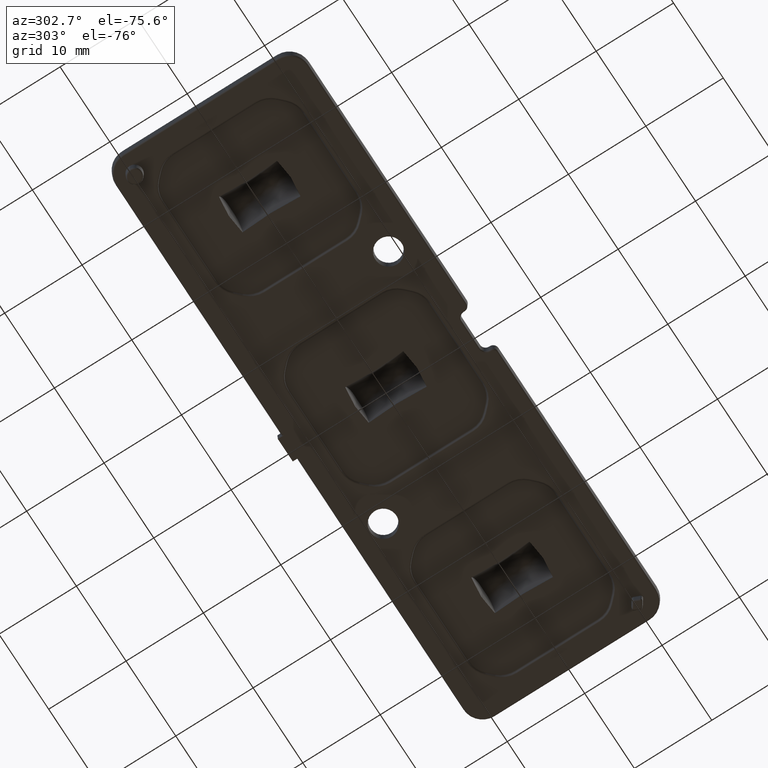
[diagram: clean part render]
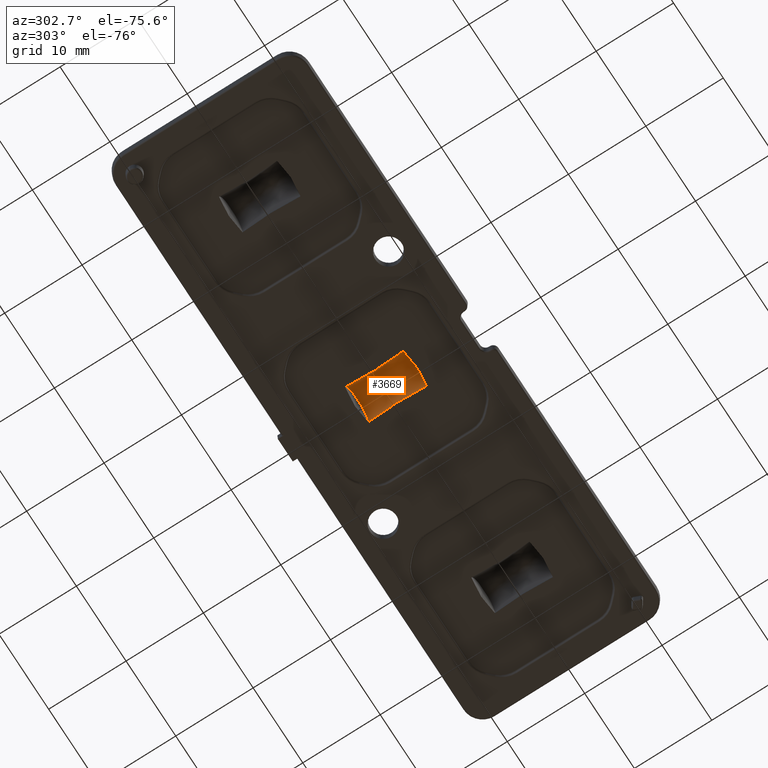
[diagram: same view with one face highlighted and labeled with its STEP entity id]
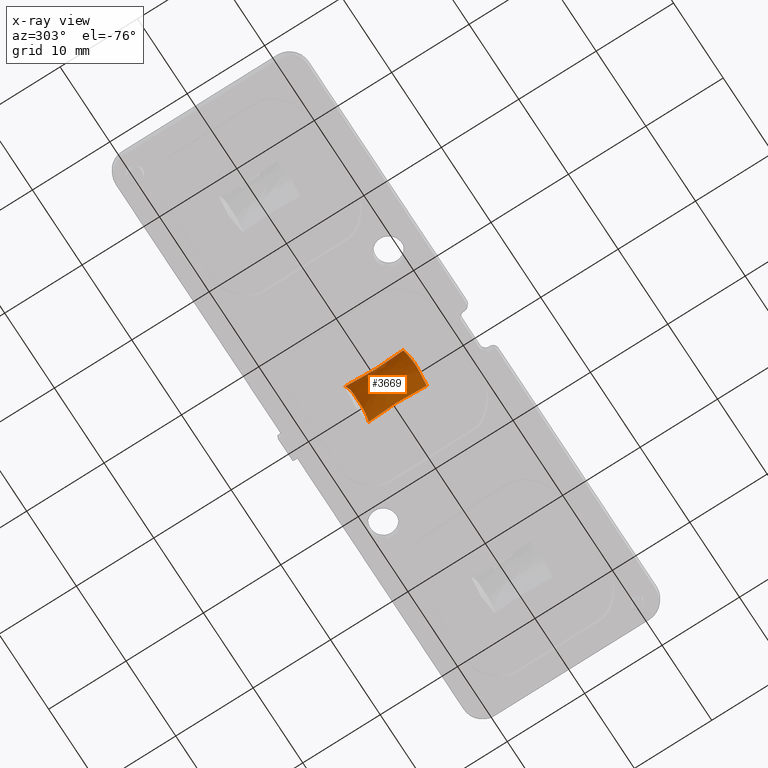
[diagram: x-ray of the same camera — body ghosted, the highlighted face saturated]
A machine part, auxiliary view. The second image highlights one B-rep face of the part: STEP entity #3669.
The next image is the same camera in x-ray: the body ghosted, the highlighted face saturated — about 0% of this face is hidden behind the body in this view.
In plain terms, the highlighted face is a freeform B-spline surface patch.
Its self-contained STEP definition (entity closure, byte-faithful):
#6 = CARTESIAN_POINT ( 'NONE',  ( -1.938322180833122100, -1.781647031671474800, 1.954993092119675900 ) ) ;
#43 = CARTESIAN_POINT ( 'NONE',  ( 2.070830659728351000E-008, -3.722142616845544300, 2.684695593960499100 ) ) ;
#60 = CARTESIAN_POINT ( 'NONE',  ( -2.199999999999993500, -0.2919439246713228000, 0.7000000000000000700 ) ) ;
#120 = CARTESIAN_POINT ( 'NONE',  ( 2.247177164073872000, 1.751081931142377800, 0.7000000000000000700 ) ) ;
#171 = CARTESIAN_POINT ( 'NONE',  ( 1.910400751399803100, 3.224598417031533600, 1.817853037974136700 ) ) ;
#230 = CARTESIAN_POINT ( 'NONE',  ( 1.106021607526031600, 3.633064071073342400, 2.748734378366568500 ) ) ;
#288 = CARTESIAN_POINT ( 'NONE',  ( -2.273489633366057500, 2.335922783022777800, 0.7000000000000001800 ) ) ;
#289 = CARTESIAN_POINT ( 'NONE',  ( -1.115164121187152400, 3.885060405516905100, 2.558542903362211800 ) ) ;
#343 = CARTESIAN_POINT ( 'NONE',  ( -2.254173030084107000, -1.873504598559234900, 0.7000000000000001800 ) ) ;
#344 = CARTESIAN_POINT ( 'NONE',  ( -1.963102040071360800, 4.049999990387860300, 1.547729142131533300 ) ) ;
#427 = CARTESIAN_POINT ( 'NONE',  ( -1.368020943705497100, 3.686195171846964300, 2.142673637579761300 ) ) ;
#816 = CARTESIAN_POINT ( 'NONE',  ( 0.2759687860684171300, 3.714579178955280400, 2.674360944650176800 ) ) ;
#955 = CARTESIAN_POINT ( 'NONE',  ( 0.5452000737742284100, -3.703301169045987200, 2.619409536375215900 ) ) ;
#1028 = CARTESIAN_POINT ( 'NONE',  ( 2.210189081648904300, -0.6182218380760263800, 0.7000000000000001800 ) ) ;
#1090 = CARTESIAN_POINT ( 'NONE',  ( 2.362073832273960900, 3.744129350259079100, 0.7000000000000000700 ) ) ;
#1133 = CARTESIAN_POINT ( 'NONE',  ( 1.121350742531300500, -3.999999966070490600, 2.450000026747670900 ) ) ;
#1195 = CARTESIAN_POINT ( 'NONE',  ( -1.115164120736870300, -3.885060401505610300, 2.558542900511462800 ) ) ;
#1259 = CARTESIAN_POINT ( 'NONE',  ( -1.932443769087164500, -3.641759306834954700, 1.697096321535083400 ) ) ;
#1318 = CARTESIAN_POINT ( 'NONE',  ( -2.321173462977704100, -3.208924242817424500, 0.7000000000000000700 ) ) ;
#1370 = CARTESIAN_POINT ( 'NONE',  ( 2.218255683754073000, -0.8757043699254470900, 0.7000000000000000700 ) ) ;
#1425 = CARTESIAN_POINT ( 'NONE',  ( 1.983972765628786700, 0.2979577111195352800, 1.925151326831767500 ) ) ;
#1482 = CARTESIAN_POINT ( 'NONE',  ( 1.209246416581734900, 1.812222114234161900, 3.512099556389242300 ) ) ;
#1535 = CARTESIAN_POINT ( 'NONE',  ( -1.095075230392116100, 3.240717626379617600, 2.991851515250781200 ) ) ;
#1594 = CARTESIAN_POINT ( 'NONE',  ( -1.932443770061454500, 3.641759311594911600, 1.697096325104369100 ) ) ;
#1653 = CARTESIAN_POINT ( 'NONE',  ( -2.239050598193400400, 1.511490247740725500, 0.7000000000000001800 ) ) ;
#1654 = CARTESIAN_POINT ( 'NONE',  ( -2.381440135969019200, 3.950555956627526100, 0.7000000000000000700 ) ) ;
#1716 = CARTESIAN_POINT ( 'NONE',  ( -2.299258491088910900, -2.809553236507722500, 0.7000000000000001800 ) ) ;
#1793 = CARTESIAN_POINT ( 'NONE',  ( -1.043187975939768000, 3.688157043570041300, 2.391203127542404200 ) ) ;
#1888 = CARTESIAN_POINT ( 'NONE',  ( -0.1374736375402809700, -3.722142617429577100, 2.684695589789028800 ) ) ;
#1969 = ORIENTED_EDGE ( 'NONE', *, *, #8386, .F. ) ;
#2200 = CARTESIAN_POINT ( 'NONE',  ( 0.6732593278642089500, 3.698205897707515200, 2.577037121886300900 ) ) ;
#2342 = CARTESIAN_POINT ( 'NONE',  ( 0.1383372661423200300, -3.722142613413574000, 2.684695600231164800 ) ) ;
#2406 = CARTESIAN_POINT ( 'NONE',  ( 2.200008142793929100, -0.2073773898996218700, 0.7000000000000001800 ) ) ;
#2518 = CARTESIAN_POINT ( 'NONE',  ( -1.963102040071357200, -4.049999978704883900, 1.547729149294735800 ) ) ;
#2575 = CARTESIAN_POINT ( 'NONE',  ( -2.381440134618179700, -3.950555944396136400, 0.7000000000000000700 ) ) ;
#2630 = CARTESIAN_POINT ( 'NONE',  ( 2.346304673140578300, -3.550179632978740500, 0.7000000000000000700 ) ) ;
#2688 = CARTESIAN_POINT ( 'NONE',  ( 1.907153816328010400, -2.655614232911511800, 1.913322046017623500 ) ) ;
#2746 = CARTESIAN_POINT ( 'NONE',  ( 1.304437247449351300, -0.9117226806700918800, 3.665846891199570300 ) ) ;
#2803 = CARTESIAN_POINT ( 'NONE',  ( -1.333333333333328800, 0.3039715536328377300, 3.700000000000003700 ) ) ;
#2859 = CARTESIAN_POINT ( 'NONE',  ( -1.938322178899505500, 1.781647030699128800, 1.954993068981703000 ) ) ;
#2916 = CARTESIAN_POINT ( 'NONE',  ( -2.321173463583022100, 3.208924251036931400, 0.7000000000000000700 ) ) ;
#2976 = CARTESIAN_POINT ( 'NONE',  ( 2.366797013659063700, 3.800636953830062400, 0.7000000000000000700 ) ) ;
#3028 = CARTESIAN_POINT ( 'NONE',  ( -2.210189065722852200, 0.6182213158610523300, 0.7000000000000001800 ) ) ;
#3029 = CARTESIAN_POINT ( 'NONE',  ( 1.958503429953850600, 4.006514554179638300, 1.566354808499855500 ) ) ;
#3084 = CARTESIAN_POINT ( 'NONE',  ( -2.362073882084748400, -3.744129345926764600, 0.7000000000000000700 ) ) ;
#3099 = CARTESIAN_POINT ( 'NONE',  ( -2.362073832273950300, 3.744129350259100000, 0.7000000000000000700 ) ) ;
#3159 = CARTESIAN_POINT ( 'NONE',  ( -0.6745689859930672500, 3.698155070706369500, 2.576601719508039100 ) ) ;
#3250 = CARTESIAN_POINT ( 'NONE',  ( -0.5391142143723179900, -3.703553731607839100, 2.621052583184759300 ) ) ;
#3560 = CARTESIAN_POINT ( 'NONE',  ( 1.040870236443111700, 3.688198644842052500, 2.392648752560528400 ) ) ;
#3669 = ADVANCED_FACE ( 'NONE', ( #8288 ), #6206, .F. ) ;
#3769 = CARTESIAN_POINT ( 'NONE',  ( 2.199991898595044000, 0.2063226400510336000, 0.7000000000000001800 ) ) ;
#3866 = CARTESIAN_POINT ( 'NONE',  ( 2.393102084259711500, -4.050280456258760400, 0.7000000000000000700 ) ) ;
#3918 = CARTESIAN_POINT ( 'NONE',  ( 1.940966714631172400, -3.781142893832707400, 1.651347274007560800 ) ) ;
#3976 = CARTESIAN_POINT ( 'NONE',  ( 1.103478186450835400, -3.544698120174178500, 2.805471974520908700 ) ) ;
#4030 = CARTESIAN_POINT ( 'NONE',  ( -1.118870437173111300, -2.686956695791823600, 3.249497848675132200 ) ) ;
#4080 = CARTESIAN_POINT ( 'NONE',  ( -1.976867714103498700, -0.8937119894271604600, 1.939022939924150800 ) ) ;
#4138 = CARTESIAN_POINT ( 'NONE',  ( -2.199999999999993500, 0.2919438686061561200, 0.7000000000000000700 ) ) ;
#4158 = VERTEX_POINT ( 'NONE', #43 ) ;
#4196 = CARTESIAN_POINT ( 'NONE',  ( 2.288065611270234900, 2.626042325919572200, 0.7000000000000000700 ) ) ;
#4246 = CARTESIAN_POINT ( 'NONE',  ( 1.927331060539945400, 3.547477503267400900, 1.725603194758489600 ) ) ;
#4301 = CARTESIAN_POINT ( 'NONE',  ( 1.110283080417485200, 3.761648852249296600, 2.657236287250665600 ) ) ;
#4357 = CARTESIAN_POINT ( 'NONE',  ( -2.200008132560080700, 0.2073767231299182000, 0.7000000000000001800 ) ) ;
#4358 = CARTESIAN_POINT ( 'NONE',  ( -1.119051437471853200, 3.962748656699312600, 2.487251345159574800 ) ) ;
#4483 = CARTESIAN_POINT ( 'NONE',  ( -0.2771553780488199600, 3.714528880874688800, 2.674207735394013700 ) ) ;
#4574 = CARTESIAN_POINT ( 'NONE',  ( -1.043621975324940300, -3.686927955874604200, 2.408285504020378600 ) ) ;
#4628 = ORIENTED_EDGE ( 'NONE', *, *, #9399, .T. ) ;
#4887 = CARTESIAN_POINT ( 'NONE',  ( 1.364730772817694100, 3.686181200215257600, 2.145577332001928900 ) ) ;
#4973 = CARTESIAN_POINT ( 'NONE',  ( 1.828756313547828900, -3.696898522795972800, 1.639489717998159300 ) ) ;
#5041 = CARTESIAN_POINT ( 'NONE',  ( 2.362073830041583600, -3.744129337504875200, 0.7000001174936764100 ) ) ;
#5103 = CARTESIAN_POINT ( 'NONE',  ( 2.210161549615244200, 0.6173373913373266800, 0.7000000000000001800 ) ) ;
#5211 = CARTESIAN_POINT ( 'NONE',  ( 1.119051437284499700, -3.962748639406017800, 2.487251353412204000 ) ) ;
#5269 = CARTESIAN_POINT ( 'NONE',  ( -1.110283079810658200, -3.761648862427272400, 2.657236276173933700 ) ) ;
#5323 = CARTESIAN_POINT ( 'NONE',  ( -1.927305155498604300, -3.547439134203362900, 1.725464962567764900 ) ) ;
#5374 = CARTESIAN_POINT ( 'NONE',  ( -2.288065612374909900, -2.626042337410582600, 0.7000000000000000700 ) ) ;
#5434 = CARTESIAN_POINT ( 'NONE',  ( 2.200000000000007300, -0.2919439246713215200, 0.7000000000000000700 ) ) ;
#5487 = CARTESIAN_POINT ( 'NONE',  ( -2.362073882084748400, -3.744129345926764600, 0.7000000000000000700 ) ) ;
#5489 = CARTESIAN_POINT ( 'NONE',  ( 1.976717509767869500, 0.8934906446303081400, 1.938220728491977700 ) ) ;
#5541 = CARTESIAN_POINT ( 'NONE',  ( 1.118269809881521100, 2.686969000671034300, 3.249490286208643200 ) ) ;
#5604 = CARTESIAN_POINT ( 'NONE',  ( -1.103452300446280200, 3.544698652811125500, 2.805471647945317200 ) ) ;
#5662 = CARTESIAN_POINT ( 'NONE',  ( -1.940966715844191900, 3.781142898709346500, 1.651347279546361100 ) ) ;
#5719 = CARTESIAN_POINT ( 'NONE',  ( -2.199991908778824900, -0.2063233063428913100, 0.7000000000000001800 ) ) ;
#5720 = CARTESIAN_POINT ( 'NONE',  ( -2.393102084823298900, 4.050280460321125100, 0.7000000000000000700 ) ) ;
#5847 = CARTESIAN_POINT ( 'NONE',  ( 6.938893903907228400E-015, 3.722142616424311400, 2.684695596969109300 ) ) ;
#5913 = EDGE_CURVE ( 'NONE', #6496, #14608, #13482, .T. ) ;
#5924 = CARTESIAN_POINT ( 'NONE',  ( 2.362073830041583600, -3.744129337504875200, 0.7000001174936764100 ) ) ;
#5936 = CARTESIAN_POINT ( 'NONE',  ( -1.654667837165335200, -3.689938748973161900, 1.861612693343567700 ) ) ;
#6028 = CARTESIAN_POINT ( 'NONE',  ( 2.362073832273960900, 3.744129350259079100, 0.7000000000000000700 ) ) ;
#6206 = B_SPLINE_SURFACE_WITH_KNOTS ( 'NONE', 3, 3, ( 
 ( #17300, #15945, #1133, #10580, #2518, #11932 ),
 ( #3866, #13291, #5211, #14644, #6565, #16010 ),
 ( #7920, #17358, #9291, #1195, #10629, #2575 ),
 ( #11990, #3918, #13348, #5269, #14706, #6623 ),
 ( #16066, #7981, #17418, #9351, #1259, #10684 ),
 ( #2630, #12051, #3976, #13405, #5323, #14768 ),
 ( #6680, #16119, #8039, #17481, #9407, #1318 ),
 ( #10747, #2688, #12108, #4030, #13455, #5374 ),
 ( #14822, #6736, #16174, #8096, #6, #9458 ),
 ( #1370, #10806, #2746, #12163, #4080, #13510 ),
 ( #5434, #14875, #6790, #16230, #8150, #60 ),
 ( #9519, #1425, #10856, #2803, #12214, #4138 ),
 ( #13566, #5489, #14932, #6842, #16286, #8208 ),
 ( #120, #9565, #1482, #10917, #2859, #12273 ),
 ( #4196, #13620, #5541, #14991, #6897, #16344 ),
 ( #8265, #171, #9624, #1535, #10969, #2916 ),
 ( #12326, #4246, #13680, #5604, #15049, #6956 ),
 ( #16403, #8322, #230, #9688, #1594, #11028 ),
 ( #2976, #12384, #4301, #13741, #5662, #15109 ),
 ( #7014, #16461, #8383, #289, #9745, #1654 ),
 ( #11089, #3029, #12438, #4358, #13796, #5720 ),
 ( #15161, #7072, #16519, #8449, #344, #9802 ) ),
 .UNSPECIFIED., .F., .F., .F.,
 ( 4, 1, 1, 1, 2, 1, 1, 1, 2, 1, 1, 1, 2, 1, 1, 1, 4 ),
 ( 4, 2, 4 ),
 ( 0.0000000000000000000, 0.01838052594720699900, 0.03676105189441399700, 0.05514157784162099200, 0.07352210378882799400, 0.1801415880792652200, 0.2867610723697023900, 0.3933805566601396000, 0.5000000409505768200, 0.6066195047657256800, 0.7132389685808744300, 0.8198584323960231800, 0.9264778962111718300, 0.9448584221583789000, 0.9632389481055858600, 0.9816194740527929300, 1.000000000000000000 ),
 ( 0.0000000000000000000, 0.5000000000037094800, 1.000000000000000000 ),
 .UNSPECIFIED. ) ;
#6252 = CARTESIAN_POINT ( 'NONE',  ( 1.825965993253917200, 3.696755893676531900, 1.643366062819233300 ) ) ;
#6332 = CARTESIAN_POINT ( 'NONE',  ( 1.368024019842837900, -3.686194442317604300, 2.142676218617048300 ) ) ;
#6397 = CARTESIAN_POINT ( 'NONE',  ( 2.299258490146030000, -2.809553219174315300, 0.7000000000000001800 ) ) ;
#6460 = CARTESIAN_POINT ( 'NONE',  ( 2.239021818563391400, 1.510657491818444600, 0.7000000000000001800 ) ) ;
#6496 = VERTEX_POINT ( 'NONE', #17048 ) ;
#6565 = CARTESIAN_POINT ( 'NONE',  ( -1.958503429577852700, -4.006514543502028400, 1.566354812627025500 ) ) ;
#6623 = CARTESIAN_POINT ( 'NONE',  ( -2.366797011839321600, -3.800636933899012200, 0.7000000000000000700 ) ) ;
#6680 = CARTESIAN_POINT ( 'NONE',  ( 2.321173462977721400, -3.208924242817422700, 0.7000000000000000700 ) ) ;
#6736 = CARTESIAN_POINT ( 'NONE',  ( 1.937834025940582400, -1.780927741752104300, 1.952385951783968100 ) ) ;
#6790 = CARTESIAN_POINT ( 'NONE',  ( 1.333333333333342600, -0.3039716120078394000, 3.699999999999997100 ) ) ;
#6842 = CARTESIAN_POINT ( 'NONE',  ( -1.304587402708830900, 0.9117196686729400800, 3.665848746300070200 ) ) ;
#6897 = CARTESIAN_POINT ( 'NONE',  ( -1.907754621613178700, 2.656499518184444900, 1.916530818317758300 ) ) ;
#6956 = CARTESIAN_POINT ( 'NONE',  ( -2.346304673745879000, 3.550179641198251400, 0.7000000000000000700 ) ) ;
#7014 = CARTESIAN_POINT ( 'NONE',  ( 2.381440135969033400, 3.950555956627527900, 0.7000000000000000700 ) ) ;
#7071 = CARTESIAN_POINT ( 'NONE',  ( -2.210161565520132800, -0.6173379129512068800, 0.7000000000000001800 ) ) ;
#7072 = CARTESIAN_POINT ( 'NONE',  ( 1.963102040071655700, 4.049999990387740400, 1.547729142131059900 ) ) ;
#7132 = VERTEX_POINT ( 'NONE', #6028 ) ;
#7148 = CARTESIAN_POINT ( 'NONE',  ( -2.123424178909661300, 3.716072082647690100, 1.188188466925231600 ) ) ;
#7299 = CARTESIAN_POINT ( 'NONE',  ( -2.122762127793189200, -3.715974348388819200, 1.189760110682405200 ) ) ;
#7584 = EDGE_CURVE ( 'NONE', #14608, #7132, #15110, .T. ) ;
#7611 = CARTESIAN_POINT ( 'NONE',  ( 2.251683283773317200, 3.728488418465862900, 0.9496626779433129400 ) ) ;
#7692 = CARTESIAN_POINT ( 'NONE',  ( 1.043189939419810800, -3.688156569992945500, 2.391205038118031200 ) ) ;
#7759 = CARTESIAN_POINT ( 'NONE',  ( 2.254173029359672700, -1.873504581213246000, 0.7000000000000001800 ) ) ;
#7817 = CARTESIAN_POINT ( 'NONE',  ( 2.273427146593152100, 2.334609663762403600, 0.7000000000000001800 ) ) ;
#7837 = VERTEX_POINT ( 'NONE', #5924 ) ;
#7920 = CARTESIAN_POINT ( 'NONE',  ( 2.381440134618197000, -3.950555944396134700, 0.7000000000000000700 ) ) ;
#7981 = CARTESIAN_POINT ( 'NONE',  ( 1.932443769087237400, -3.641759306834931200, 1.697096321534979200 ) ) ;
#8039 = CARTESIAN_POINT ( 'NONE',  ( 1.094925072682599600, -3.240720666241547800, 2.991849651420888100 ) ) ;
#8096 = CARTESIAN_POINT ( 'NONE',  ( -1.209734426923715600, -1.812212058892754200, 3.512105721485538900 ) ) ;
#8150 = CARTESIAN_POINT ( 'NONE',  ( -1.983972765628772700, -0.2979577683395889800, 1.925151326831767700 ) ) ;
#8208 = CARTESIAN_POINT ( 'NONE',  ( -2.218255679677375800, 0.8757042619553233600, 0.7000000000000000700 ) ) ;
#8265 = CARTESIAN_POINT ( 'NONE',  ( 2.321173463583032300, 3.208924251036933100, 0.7000000000000000700 ) ) ;
#8288 = FACE_OUTER_BOUND ( 'NONE', #16428, .T. ) ;
#8322 = CARTESIAN_POINT ( 'NONE',  ( 1.932443770061524000, 3.641759311594892100, 1.697096325104265000 ) ) ;
#8382 = CARTESIAN_POINT ( 'NONE',  ( -2.299258481381127900, 2.809553059084732900, 0.7000000000000001800 ) ) ;
#8383 = CARTESIAN_POINT ( 'NONE',  ( 1.115164121187548000, 3.885060405516735000, 2.558542903361533700 ) ) ;
#8386 = EDGE_CURVE ( 'NONE', #7837, #7132, #12497, .T. ) ;
#8447 = CARTESIAN_POINT ( 'NONE',  ( -2.239021834358080100, -1.510657922335606700, 0.7000000000000001800 ) ) ;
#8449 = CARTESIAN_POINT ( 'NONE',  ( -1.121350742530717600, 3.999999989436735500, 2.450000012422213700 ) ) ;
#8522 = CARTESIAN_POINT ( 'NONE',  ( -1.662621744441865200, 3.690131824330765000, 1.852830886821072800 ) ) ;
#8606 = B_SPLINE_CURVE_WITH_KNOTS ( 'NONE', 3,
 ( #9970, #1888, #11318, #3250, #12660, #4574, #14018, #5936, #15387, #7299, #16742, #8663 ),
 .UNSPECIFIED., .F., .F.,
 ( 4, 2, 2, 2, 2, 4 ),
 ( 0.0000000000000000000, 0.0004070509442884992300, 0.0008141018885769984600, 0.001628203777153997600, 0.002442305665730995600, 0.003256407554307993800 ),
 .UNSPECIFIED. ) ;
#8663 = CARTESIAN_POINT ( 'NONE',  ( -2.362073882084748400, -3.744129345926764600, 0.7000000000000000700 ) ) ;
#8992 = ORIENTED_EDGE ( 'NONE', *, *, #7584, .T. ) ;
#9057 = CARTESIAN_POINT ( 'NONE',  ( 0.6745697716847551800, -3.698154914050506600, 2.576602364143099500 ) ) ;
#9123 = CARTESIAN_POINT ( 'NONE',  ( 2.220486613060058500, -0.9369320101880079800, 0.7000000000000001800 ) ) ;
#9183 = CARTESIAN_POINT ( 'NONE',  ( 2.330037574450313900, 3.375467561259160000, 0.7000000000000001800 ) ) ;
#9229 = VERTEX_POINT ( 'NONE', #5487 ) ;
#9291 = CARTESIAN_POINT ( 'NONE',  ( 1.115164120737272700, -3.885060401505437100, 2.558542900510784300 ) ) ;
#9298 = EDGE_CURVE ( 'NONE', #6496, #9229, #11752, .T. ) ;
#9351 = CARTESIAN_POINT ( 'NONE',  ( -1.106021607038761600, -3.633064080003550100, 2.748734371228204900 ) ) ;
#9399 = EDGE_CURVE ( 'NONE', #4158, #9229, #8606, .T. ) ;
#9407 = CARTESIAN_POINT ( 'NONE',  ( -1.910551015390126600, -3.224820930670153200, 1.818654893300423400 ) ) ;
#9458 = CARTESIAN_POINT ( 'NONE',  ( -2.247177166974284800, -1.751082008780280800, 0.7000000000000000700 ) ) ;
#9519 = CARTESIAN_POINT ( 'NONE',  ( 2.200000000000007300, 0.2919438686061574000, 0.7000000000000000700 ) ) ;
#9565 = CARTESIAN_POINT ( 'NONE',  ( 1.937834023641369600, 1.780927740235602500, 1.952385926696779400 ) ) ;
#9624 = CARTESIAN_POINT ( 'NONE',  ( 1.094925072772007200, 3.240720665439982700, 2.991849651912335000 ) ) ;
#9688 = CARTESIAN_POINT ( 'NONE',  ( -1.106021607525906800, 3.633064071073393500, 2.748734378366776400 ) ) ;
#9744 = CARTESIAN_POINT ( 'NONE',  ( -2.254173012929086500, 1.873504185054094300, 0.7000000000000001800 ) ) ;
#9745 = CARTESIAN_POINT ( 'NONE',  ( -1.950728797384112300, 3.917808176741782100, 1.602000587601733800 ) ) ;
#9801 = CARTESIAN_POINT ( 'NONE',  ( -2.273427161282055100, -2.334609955197667600, 0.7000000000000001800 ) ) ;
#9802 = CARTESIAN_POINT ( 'NONE',  ( -2.399999999999992400, 4.099999999999982800, 0.7000000000000000700 ) ) ;
#9882 = CARTESIAN_POINT ( 'NONE',  ( -1.264324553692689300, 3.685989478575201400, 2.231776859311043200 ) ) ;
#9970 = CARTESIAN_POINT ( 'NONE',  ( 2.070830659728351000E-008, -3.722142616845544300, 2.684695593960499100 ) ) ;
#10280 = CARTESIAN_POINT ( 'NONE',  ( 0.5441845184000682100, 3.703343111462001700, 2.619705876789333800 ) ) ;
#10413 = CARTESIAN_POINT ( 'NONE',  ( 0.2771557205577684400, -3.714528860678594700, 2.674207739461318000 ) ) ;
#10476 = CARTESIAN_POINT ( 'NONE',  ( 2.206479188001532000, -0.4685117543539306700, 0.7000000000000001800 ) ) ;
#10580 = CARTESIAN_POINT ( 'NONE',  ( -1.121350742530717600, -3.999999966070746400, 2.450000026748618200 ) ) ;
#10629 = CARTESIAN_POINT ( 'NONE',  ( -1.950728796483554900, -3.917808168620439800, 1.602000586176359500 ) ) ;
#10684 = CARTESIAN_POINT ( 'NONE',  ( -2.354012593523444600, -3.650454542327050200, 0.7000000000000000700 ) ) ;
#10747 = CARTESIAN_POINT ( 'NONE',  ( 2.288065612374924100, -2.626042337410580800, 0.7000000000000000700 ) ) ;
#10806 = CARTESIAN_POINT ( 'NONE',  ( 1.976717512598150900, -0.8934906694519902900, 1.938220742897777100 ) ) ;
#10856 = CARTESIAN_POINT ( 'NONE',  ( 1.333333333333342600, 0.3039715536328683200, 3.699999999999997100 ) ) ;
#10917 = CARTESIAN_POINT ( 'NONE',  ( -1.209734425956905600, 1.812212134585966300, 3.512105675209592300 ) ) ;
#10969 = CARTESIAN_POINT ( 'NONE',  ( -1.910551015793671800, 3.224820934378021900, 1.818654893546822700 ) ) ;
#11028 = CARTESIAN_POINT ( 'NONE',  ( -2.354012594984876500, 3.650454560777119300, 0.7000000000000000700 ) ) ;
#11088 = CARTESIAN_POINT ( 'NONE',  ( -2.220486593514228200, 0.9369314072461589800, 0.7000000000000001800 ) ) ;
#11089 = CARTESIAN_POINT ( 'NONE',  ( 2.393102084823309100, 4.050280460321126900, 0.7000000000000000700 ) ) ;
#11146 = CARTESIAN_POINT ( 'NONE',  ( -2.330037578500737000, -3.375467607947582900, 0.7000000000000001800 ) ) ;
#11227 = CARTESIAN_POINT ( 'NONE',  ( -0.9246399285335502600, 3.690581482775495500, 2.462052634159830300 ) ) ;
#11318 = CARTESIAN_POINT ( 'NONE',  ( -0.2730840939959735500, -3.714701937605513000, 2.674625211188857300 ) ) ;
#11629 = CARTESIAN_POINT ( 'NONE',  ( 0.9221742298762393200, 3.690644728358057200, 2.463347226730815200 ) ) ;
#11752 = B_SPLINE_CURVE_WITH_KNOTS ( 'NONE', 2,
 ( #12383, #15107, #8382, #288, #9744, #1653, #11088, #3028, #12437, #4357, #13795, #5719, #15160, #7071, #16518, #8447, #343, #9801, #1716, #11146, #3084 ),
 .UNSPECIFIED., .F., .F.,
 ( 3, 2, 2, 2, 2, 2, 2, 2, 2, 2, 3 ),
 ( 0.0000000000000000000, 0.1250000000000000000, 0.2500000000000000000, 0.3750000000000000000, 0.4375000000000000000, 0.5000000000000000000, 0.5625000000000000000, 0.6250000000000000000, 0.7500000000000000000, 0.8750000000000000000, 1.000000000000000000 ),
 .UNSPECIFIED. ) ;
#11760 = CARTESIAN_POINT ( 'NONE',  ( 2.070830659728351000E-008, -3.722142616845544300, 2.684695593960499100 ) ) ;
#11825 = CARTESIAN_POINT ( 'NONE',  ( 2.200000000000010800, -3.372033762145689500E-007, 0.7000000000000001800 ) ) ;
#11932 = CARTESIAN_POINT ( 'NONE',  ( -2.399999999999992400, -4.100000000000014700, 0.7000000000000000700 ) ) ;
#11990 = CARTESIAN_POINT ( 'NONE',  ( 2.366797011839338900, -3.800636933899010500, 0.7000000000000000700 ) ) ;
#12051 = CARTESIAN_POINT ( 'NONE',  ( 1.927331060112020400, -3.547477494759852400, 1.725603197302658200 ) ) ;
#12108 = CARTESIAN_POINT ( 'NONE',  ( 1.118269810699200400, -2.686968978426715000, 3.249490317824853800 ) ) ;
#12163 = CARTESIAN_POINT ( 'NONE',  ( -1.304587404067723200, -0.9117196100113172900, 3.665848773912152600 ) ) ;
#12167 = EDGE_CURVE ( 'NONE', #7837, #4158, #14085, .T. ) ;
#12214 = CARTESIAN_POINT ( 'NONE',  ( -1.983972765628772700, 0.2979577111195190800, 1.925151326831767300 ) ) ;
#12273 = CARTESIAN_POINT ( 'NONE',  ( -2.247177164073858300, 1.751081931142376600, 0.7000000000000000700 ) ) ;
#12326 = CARTESIAN_POINT ( 'NONE',  ( 2.346304673745892800, 3.550179641198253100, 0.7000000000000000700 ) ) ;
#12383 = CARTESIAN_POINT ( 'NONE',  ( -2.362073832273950300, 3.744129350259100000, 0.7000000000000000700 ) ) ;
#12384 = CARTESIAN_POINT ( 'NONE',  ( 1.940966715844320200, 3.781142898709299000, 1.651347279546144100 ) ) ;
#12437 = CARTESIAN_POINT ( 'NONE',  ( -2.206479171851506200, 0.4685110867219399700, 0.7000000000000001800 ) ) ;
#12438 = CARTESIAN_POINT ( 'NONE',  ( 1.119051437472366800, 3.962748656699087000, 2.487251345158719500 ) ) ;
#12497 = B_SPLINE_CURVE_WITH_KNOTS ( 'NONE', 2,
 ( #5041, #13123, #6397, #15836, #7759, #17198, #9123, #1028, #10476, #2406, #11825, #3769, #13187, #5103, #14539, #6460, #15896, #7817, #17253, #9183, #1090 ),
 .UNSPECIFIED., .F., .F.,
 ( 3, 2, 2, 2, 2, 2, 2, 2, 2, 2, 3 ),
 ( 0.0000000000000000000, 0.1250000000000000000, 0.2500000000000000000, 0.3750000000000000000, 0.4375000000000000000, 0.5000000000000000000, 0.5625000000000000000, 0.6250000000000000000, 0.7500000000000000000, 0.8750000000000000000, 1.000000000000000000 ),
 .UNSPECIFIED. ) ;
#12565 = CARTESIAN_POINT ( 'NONE',  ( -0.5451995758179509800, 3.703301255067176900, 2.619409205033220300 ) ) ;
#12660 = CARTESIAN_POINT ( 'NONE',  ( -0.6711870878061126900, -3.698283180106917400, 2.577774011284259500 ) ) ;
#12909 = CARTESIAN_POINT ( 'NONE',  ( 0.1378678463863490800, 3.722142615352372500, 2.684695604625811200 ) ) ;
#12968 = CARTESIAN_POINT ( 'NONE',  ( 1.261451281636165600, 3.685998121567037900, 2.234076094704550400 ) ) ;
#13050 = CARTESIAN_POINT ( 'NONE',  ( 2.123425044121437300, -3.716071853354689000, 1.188189083443933700 ) ) ;
#13123 = CARTESIAN_POINT ( 'NONE',  ( 2.330066119088338700, -3.375796037004011700, 0.7000000000000001800 ) ) ;
#13187 = CARTESIAN_POINT ( 'NONE',  ( 2.206479172281297500, 0.4685111040785469000, 0.7000000000000001800 ) ) ;
#13291 = CARTESIAN_POINT ( 'NONE',  ( 1.958503429578119800, -4.006514543501917400, 1.566354812626597800 ) ) ;
#13348 = CARTESIAN_POINT ( 'NONE',  ( 1.110283079810911600, -3.761648862427165800, 2.657236276173499300 ) ) ;
#13405 = CARTESIAN_POINT ( 'NONE',  ( -1.103452300244504200, -3.544698644088629400, 2.805471653293358300 ) ) ;
#13455 = CARTESIAN_POINT ( 'NONE',  ( -1.907754622349634700, -2.656499512812292400, 1.916530834123103100 ) ) ;
#13482 = B_SPLINE_CURVE_WITH_KNOTS ( 'NONE', 3,
 ( #3099, #13868, #7148, #16593, #8522, #427, #9882, #1793, #11227, #3159, #12565, #4483, #13928, #5847 ),
 .UNSPECIFIED., .F., .F.,
 ( 4, 2, 2, 2, 2, 2, 4 ),
 ( 0.0000000000000000000, 0.0008089552711588740900, 0.001617910542317747700, 0.002022388177897184800, 0.002426865813476621000, 0.002831343449056057600, 0.003235821084635494200 ),
 .UNSPECIFIED. ) ;
#13510 = CARTESIAN_POINT ( 'NONE',  ( -2.218255683754059200, -0.8757043699254484200, 0.7000000000000000700 ) ) ;
#13566 = CARTESIAN_POINT ( 'NONE',  ( 2.218255679677389600, 0.8757042619553246900, 0.7000000000000000700 ) ) ;
#13620 = CARTESIAN_POINT ( 'NONE',  ( 1.907153815141587900, 2.655614237613932400, 1.913322027813243500 ) ) ;
#13680 = CARTESIAN_POINT ( 'NONE',  ( 1.103478186676949600, 3.544698128896195800, 2.805471969173162400 ) ) ;
#13741 = CARTESIAN_POINT ( 'NONE',  ( -1.110283080417235400, 3.761648852249400900, 2.657236287251100400 ) ) ;
#13795 = CARTESIAN_POINT ( 'NONE',  ( -2.199999999999997100, -3.545636976993277500E-007, 0.7000000000000001800 ) ) ;
#13796 = CARTESIAN_POINT ( 'NONE',  ( -1.958503429953590400, 4.006514554179743100, 1.566354808500283000 ) ) ;
#13868 = CARTESIAN_POINT ( 'NONE',  ( -2.251578579770251200, 3.728473672104003300, 0.9498988451416390300 ) ) ;
#13928 = CARTESIAN_POINT ( 'NONE',  ( -0.1383370691656296300, 3.722142617499896400, 2.684695589286351300 ) ) ;
#14018 = CARTESIAN_POINT ( 'NONE',  ( -1.266670460489784000, -3.684930172345892300, 2.241403069958152600 ) ) ;
#14053 = CARTESIAN_POINT ( 'NONE',  ( 6.938893903907228400E-015, 3.722142616424311400, 2.684695596969109300 ) ) ;
#14085 = B_SPLINE_CURVE_WITH_KNOTS ( 'NONE', 3,
 ( #17072, #15709, #13050, #4973, #14409, #6332, #15771, #7692, #17128, #9057, #955, #10413, #2342, #11760 ),
 .UNSPECIFIED., .F., .F.,
 ( 4, 2, 2, 2, 2, 2, 4 ),
 ( 0.0000000000000000000, 0.0008089553453492582900, 0.001617910690698516600, 0.002022388363373145300, 0.002426866036047774300, 0.002831343708722402900, 0.003235821381397031800 ),
 .UNSPECIFIED. ) ;
#14330 = CARTESIAN_POINT ( 'NONE',  ( 1.657884574922149400, 3.690007930116953300, 1.858155778817296400 ) ) ;
#14409 = CARTESIAN_POINT ( 'NONE',  ( 1.662625512203092600, -3.690131061708912700, 1.852832780913757200 ) ) ;
#14539 = CARTESIAN_POINT ( 'NONE',  ( 2.220486594074904600, 0.9369314245997143500, 0.7000000000000001800 ) ) ;
#14608 = VERTEX_POINT ( 'NONE', #14053 ) ;
#14644 = CARTESIAN_POINT ( 'NONE',  ( -1.119051437283986200, -3.962748639406243400, 2.487251353413058900 ) ) ;
#14706 = CARTESIAN_POINT ( 'NONE',  ( -1.940966714631037200, -3.781142893832756700, 1.651347274007777900 ) ) ;
#14768 = CARTESIAN_POINT ( 'NONE',  ( -2.346304673140564600, -3.550179632978742300, 0.7000000000000000700 ) ) ;
#14822 = CARTESIAN_POINT ( 'NONE',  ( 2.247177166974298600, -1.751082008780279400, 0.7000000000000000700 ) ) ;
#14875 = CARTESIAN_POINT ( 'NONE',  ( 1.983972765628786700, -0.2979577683396027500, 1.925151326831767500 ) ) ;
#14932 = CARTESIAN_POINT ( 'NONE',  ( 1.304437245978094200, 0.9117227393339667500, 3.665846863586108100 ) ) ;
#14991 = CARTESIAN_POINT ( 'NONE',  ( -1.118870436804885000, 2.686956718027139000, 3.249497817064442200 ) ) ;
#15049 = CARTESIAN_POINT ( 'NONE',  ( -1.927305155902149500, 3.547439142674366800, 1.725464959893744400 ) ) ;
#15107 = CARTESIAN_POINT ( 'NONE',  ( -2.330066115042578500, 3.375795990369582900, 0.7000000000000001800 ) ) ;
#15109 = CARTESIAN_POINT ( 'NONE',  ( -2.366797013659053500, 3.800636953830060600, 0.7000000000000000700 ) ) ;
#15110 = B_SPLINE_CURVE_WITH_KNOTS ( 'NONE', 3,
 ( #16992, #12909, #816, #10280, #2200, #11629, #3560, #12968, #4887, #14330, #6252, #15690, #7611, #17050 ),
 .UNSPECIFIED., .F., .F.,
 ( 4, 2, 2, 2, 2, 2, 4 ),
 ( 0.0000000000000000000, 0.0004124592496560089800, 0.0008249184993120179500, 0.001237377748968026900, 0.001649836998624035900, 0.002474755497936054300, 0.003299673997248073100 ),
 .UNSPECIFIED. ) ;
#15160 = CARTESIAN_POINT ( 'NONE',  ( -2.206479188431295800, -0.4685117717105382600, 0.7000000000000001800 ) ) ;
#15161 = CARTESIAN_POINT ( 'NONE',  ( 2.400000000000006100, 4.099999999999984500, 0.7000000000000000700 ) ) ;
#15387 = CARTESIAN_POINT ( 'NONE',  ( -1.823767962547380800, -3.696630410599473800, 1.646555736127730100 ) ) ;
#15690 = CARTESIAN_POINT ( 'NONE',  ( 2.122223073015359500, 3.715955234077480600, 1.190421836017731900 ) ) ;
#15709 = CARTESIAN_POINT ( 'NONE',  ( 2.251578788117655400, -3.728473613242660400, 0.9498990052331953700 ) ) ;
#15771 = CARTESIAN_POINT ( 'NONE',  ( 1.264327277125416100, -3.685988815567089000, 2.231779360067183100 ) ) ;
#15828 = ORIENTED_EDGE ( 'NONE', *, *, #9298, .F. ) ;
#15836 = CARTESIAN_POINT ( 'NONE',  ( 2.273489648053308900, -2.335923074312670000, 0.7000000000000001800 ) ) ;
#15896 = CARTESIAN_POINT ( 'NONE',  ( 2.254173013653548700, 1.873504202400076800, 0.7000000000000001800 ) ) ;
#15945 = CARTESIAN_POINT ( 'NONE',  ( 1.963102040071659000, -4.049999978704756900, 1.547729149294262200 ) ) ;
#16010 = CARTESIAN_POINT ( 'NONE',  ( -2.393102084259694200, -4.050280456258762200, 0.7000000000000000700 ) ) ;
#16066 = CARTESIAN_POINT ( 'NONE',  ( 2.354012593523461900, -3.650454542327048500, 0.7000000000000000700 ) ) ;
#16119 = CARTESIAN_POINT ( 'NONE',  ( 1.910400751108844800, -3.224598413492901500, 1.817853038326977500 ) ) ;
#16174 = CARTESIAN_POINT ( 'NONE',  ( 1.209246417913718100, -1.812222038533633800, 3.512099602669673800 ) ) ;
#16230 = CARTESIAN_POINT ( 'NONE',  ( -1.333333333333328800, -0.3039716120078103100, 3.700000000000004600 ) ) ;
#16286 = CARTESIAN_POINT ( 'NONE',  ( -1.976867711385710900, 0.8937119647729093700, 1.939022926118109600 ) ) ;
#16301 = ORIENTED_EDGE ( 'NONE', *, *, #12167, .T. ) ;
#16344 = CARTESIAN_POINT ( 'NONE',  ( -2.288065611270220700, 2.626042325919570400, 0.7000000000000000700 ) ) ;
#16403 = CARTESIAN_POINT ( 'NONE',  ( 2.354012594984890200, 3.650454560777121000, 0.7000000000000000700 ) ) ;
#16428 = EDGE_LOOP ( 'NONE', ( #16301, #4628, #15828, #16432, #8992, #1969 ) ) ;
#16432 = ORIENTED_EDGE ( 'NONE', *, *, #5913, .T. ) ;
#16461 = CARTESIAN_POINT ( 'NONE',  ( 1.950728797384317000, 3.917808176741702100, 1.602000587601394700 ) ) ;
#16518 = CARTESIAN_POINT ( 'NONE',  ( -2.220486613620710400, -0.9369320275415650200, 0.7000000000000001800 ) ) ;
#16519 = CARTESIAN_POINT ( 'NONE',  ( 1.121350742531297000, 3.999999989436479700, 2.450000012421266400 ) ) ;
#16593 = CARTESIAN_POINT ( 'NONE',  ( -1.828753846367162200, 3.696899119088937500, 1.639487992420036500 ) ) ;
#16742 = CARTESIAN_POINT ( 'NONE',  ( -2.251568195880850900, -3.728472201299463300, 0.9499223263850120600 ) ) ;
#16992 = CARTESIAN_POINT ( 'NONE',  ( 6.938893903907228400E-015, 3.722142616424311400, 2.684695596969109300 ) ) ;
#17048 = CARTESIAN_POINT ( 'NONE',  ( -2.362073832273950300, 3.744129350259100000, 0.7000000000000000700 ) ) ;
#17050 = CARTESIAN_POINT ( 'NONE',  ( 2.362073832273960900, 3.744129350259079100, 0.7000000000000000700 ) ) ;
#17072 = CARTESIAN_POINT ( 'NONE',  ( 2.362073830041583600, -3.744129337504875200, 0.7000001174936764100 ) ) ;
#17128 = CARTESIAN_POINT ( 'NONE',  ( 0.9246416247171649300, -3.690581125701014800, 2.462053985267250100 ) ) ;
#17198 = CARTESIAN_POINT ( 'NONE',  ( 2.239050613982000100, -1.511490677958511100, 0.7000000000000001800 ) ) ;
#17253 = CARTESIAN_POINT ( 'NONE',  ( 2.299258482324036700, 2.809553076418127100, 0.7000000000000001800 ) ) ;
#17300 = CARTESIAN_POINT ( 'NONE',  ( 2.400000000000006100, -4.100000000000013000, 0.7000000000000000700 ) ) ;
#17358 = CARTESIAN_POINT ( 'NONE',  ( 1.950728796483759600, -3.917808168620354500, 1.602000586176020300 ) ) ;
#17418 = CARTESIAN_POINT ( 'NONE',  ( 1.106021607038890000, -3.633064080003495900, 2.748734371227997000 ) ) ;
#17481 = CARTESIAN_POINT ( 'NONE',  ( -1.095075230190343500, -3.240717627183388400, 2.991851514757982500 ) ) ;